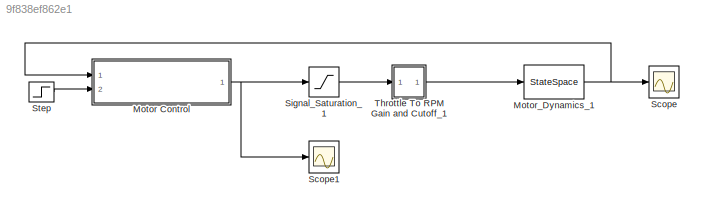
MODEL slx_9f838ef862e1
KIND model
CONFIG AbsTol = auto
CONFIG EnableMultiTasking = off
CONFIG FixedStep = auto
CONFIG MaxStep = auto
CONFIG MinStep = auto
CONFIG RelTol = 1e-3
CONFIG SampleTimeConstraint = Unconstrained
CONFIG Solver = VariableStepAuto
CONFIG SolverName = VariableStepAuto
CONFIG StartTime = 0.0
CONFIG StopTime = 10.0
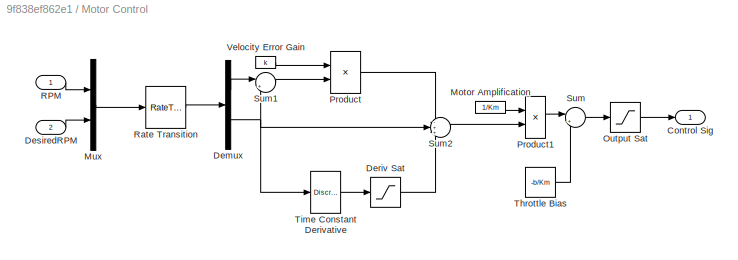
BLOCK [SubSystem] Motor Control
  OpenFcn = set_param(gcbh,'LinkStatus','none');
  Ports = [2, 1]
  RequestExecContextInheritance = off
  Variant = off
BLOCK [Outport] Motor Control/Control Sig
  IconDisplay = Port number
BLOCK [Demux] Motor Control/Demux
  DisplayOption = bar
  Outputs = 2
  Ports = [1, 2]
BLOCK [Saturate] Motor Control/Deriv Sat
  InputPortMap = u0
  LowerLimit = -Rdx
  Ports = [1, 1]
  UpperLimit = Rdx
BLOCK [Inport] Motor Control/DesiredRPM
  IconDisplay = Port number
  Port = 2
BLOCK [Constant] Motor Control/Motor Amplification
  Value = 1/Km
BLOCK [Mux] Motor Control/Mux
  DisplayOption = bar
  Inputs = 2
  Ports = [2, 1]
BLOCK [Saturate] Motor Control/Output Sat
  InputPortMap = u0
  LowerLimit = 0
  Ports = [1, 1]
  UpperLimit = Rdt
BLOCK [Product] Motor Control/Product
  InputSameDT = off
  OutDataTypeStr = Inherit: Inherit via internal rule
  Ports = [2, 1]
  RndMeth = Floor
  SaturateOnIntegerOverflow = off
BLOCK [Product] Motor Control/Product1
  InputSameDT = off
  OutDataTypeStr = Inherit: Inherit via internal rule
  Ports = [2, 1]
  RndMeth = Floor
  SaturateOnIntegerOverflow = off
BLOCK [Inport] Motor Control/RPM
  IconDisplay = Port number
BLOCK [RateTransition] Motor Control/Rate Transition
  OutPortSampleTime = Ts
BLOCK [Sum] Motor Control/Sum
  IconShape = round
  InputSameDT = off
  Inputs = |++
  OutDataTypeStr = Inherit: Inherit via internal rule
  Ports = [2, 1]
  SaturateOnIntegerOverflow = off
BLOCK [Sum] Motor Control/Sum1
  IconShape = round
  InputSameDT = off
  Inputs = |+-
  OutDataTypeStr = Inherit: Inherit via internal rule
  Ports = [2, 1]
  SaturateOnIntegerOverflow = off
BLOCK [Sum] Motor Control/Sum2
  IconShape = round
  InputSameDT = off
  Inputs = -++
  OutDataTypeStr = Inherit: Inherit via internal rule
  Ports = [3, 1]
  SaturateOnIntegerOverflow = off
BLOCK [Constant] Motor Control/Throttle Bias
  Value = -b/Km
BLOCK [Reference] Motor Control/Time Constant Derivative  REF=simulink/Discrete/Discrete Derivative
  Ports = [1, 1]
  SourceBlock = simulink/Discrete/Discrete Derivative
  SourceProductBaseCode = SL
  SourceProductName = Simulink
  SourceType = Discrete Derivative
BLOCK [Constant] Motor Control/Velocity Error Gain
  Value = k
BLOCK [StateSpace] Motor_Dynamics_1
  A = -1/quadModel.T
  C = 1/quadModel.T
  D = 0
  InitialCondition = IC.w1*quadModel.T
  Ports = [1, 1]
BLOCK [Scope] Scope
  NumInputPorts = 1
  Ports = [1]
  ScopeSpecificationString = Simulink.scopes.TimeScopeBlockCfg('CurrentConfiguration', extmgr.ConfigurationSet(extmgr.Configuration('Core','General UI',true),extmgr.Configuration('Core','Source UI',true),extmgr.Configuration('Sources','WiredSimulink',true),extmgr.Configuration('Visuals','Time Domain',true,'SerializedDisplays',{struct('MinYLimReal','3687.5','MaxYLimReal','6812.5','YLabelReal','','MinYLimMag','3687.5','MaxYLimM...<+1345ch>
BLOCK [Scope] Scope1
  NumInputPorts = 1
  Ports = [1]
  ScopeSpecificationString = Simulink.scopes.TimeScopeBlockCfg('CurrentConfiguration', extmgr.ConfigurationSet(extmgr.Configuration('Core','General UI',true),extmgr.Configuration('Core','Source UI',true),extmgr.Configuration('Sources','WiredSimulink',true,'DataLoggingVariableName','ScopeData1'),extmgr.Configuration('Visuals','Time Domain',true,'SerializedDisplays',{struct('MinYLimReal','29.70578','MaxYLimReal','107.81047','YL...<+1411ch>
BLOCK [Saturate] Signal_Saturation_1
  InputPortMap = u0
  LowerLimit = 0
  Ports = [1, 1]
  UpperLimit = 100
BLOCK [Step] Step
  After = 6500
  Before = 4000
  SampleTime = 0
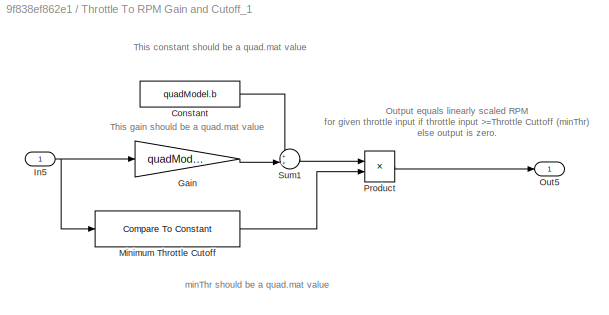
BLOCK [SubSystem] Throttle To RPM Gain and Cutoff_1
  Ports = [1, 1]
  RequestExecContextInheritance = off
  ShowPortLabels = none
  Variant = off
BLOCK [Constant] Throttle To RPM Gain and Cutoff_1/Constant
  Value = quadModel.b
BLOCK [Gain] Throttle To RPM Gain and Cutoff_1/Gain
  Gain = quadModel.cr
  OutDataTypeStr = Inherit: Inherit via internal rule
  ParamDataTypeStr = Inherit: Inherit via internal rule
  SaturateOnIntegerOverflow = off
BLOCK [Inport] Throttle To RPM Gain and Cutoff_1/In5
  IconDisplay = Port number
BLOCK [Reference] Throttle To RPM Gain and Cutoff_1/Minimum Throttle Cutoff  REF=simulink/Logic and Bit
Operations/Compare
To Constant
  Ports = [1, 1]
  SourceBlock = simulink/Logic and Bit\nOperations/Compare\nTo Constant
  SourceProductBaseCode = SL
  SourceProductName = Simulink
  SourceType = Compare To Constant
BLOCK [Outport] Throttle To RPM Gain and Cutoff_1/Out5
  IconDisplay = Port number
BLOCK [Product] Throttle To RPM Gain and Cutoff_1/Product
  InputSameDT = off
  OutDataTypeStr = Inherit: Inherit via internal rule
  Ports = [2, 1]
  RndMeth = Floor
  SaturateOnIntegerOverflow = off
BLOCK [Sum] Throttle To RPM Gain and Cutoff_1/Sum1
  IconShape = round
  InputSameDT = off
  Inputs = ++|
  OutDataTypeStr = Inherit: Inherit via internal rule
  Ports = [2, 1]
  SaturateOnIntegerOverflow = off
ANNOTATION Throttle To RPM Gain and Cutoff_1: Output equals linearly scaled RPM for given throttle input if throttle input >=Throttle Cuttoff (minThr) else output is zero.
ANNOTATION Throttle To RPM Gain and Cutoff_1: This constant should be a quad.mat value
ANNOTATION Throttle To RPM Gain and Cutoff_1: This gain should be a quad.mat value
ANNOTATION Throttle To RPM Gain and Cutoff_1: minThr should be a quad.mat value
NET Motor Control:1 -> Scope1:1, Signal_Saturation_1:1
NET Motor_Dynamics_1:1 -> Motor Control:1, Scope:1
LINE Signal_Saturation_1:1 -> Throttle To RPM Gain and Cutoff_1:1
LINE Step:1 -> Motor Control:2
LINE Throttle To RPM Gain and Cutoff_1/Constant:1 -> Throttle To RPM Gain and Cutoff_1/Sum1:1
LINE Throttle To RPM Gain and Cutoff_1/Gain:1 -> Throttle To RPM Gain and Cutoff_1/Sum1:2
NET Throttle To RPM Gain and Cutoff_1/In5:1 -> Throttle To RPM Gain and Cutoff_1/Gain:1, Throttle To RPM Gain and Cutoff_1/Minimum Throttle Cutoff:1
LINE Throttle To RPM Gain and Cutoff_1/Minimum Throttle Cutoff:1 -> Throttle To RPM Gain and Cutoff_1/Product:2
LINE Throttle To RPM Gain and Cutoff_1/Product:1 -> Throttle To RPM Gain and Cutoff_1/Out5:1
LINE Throttle To RPM Gain and Cutoff_1/Sum1:1 -> Throttle To RPM Gain and Cutoff_1/Product:1
LINE Throttle To RPM Gain and Cutoff_1:1 -> Motor_Dynamics_1:1
note: NET lines group one-source signal fan-out (src -> all destinations, sorted); 1:1 wires keep LINE
